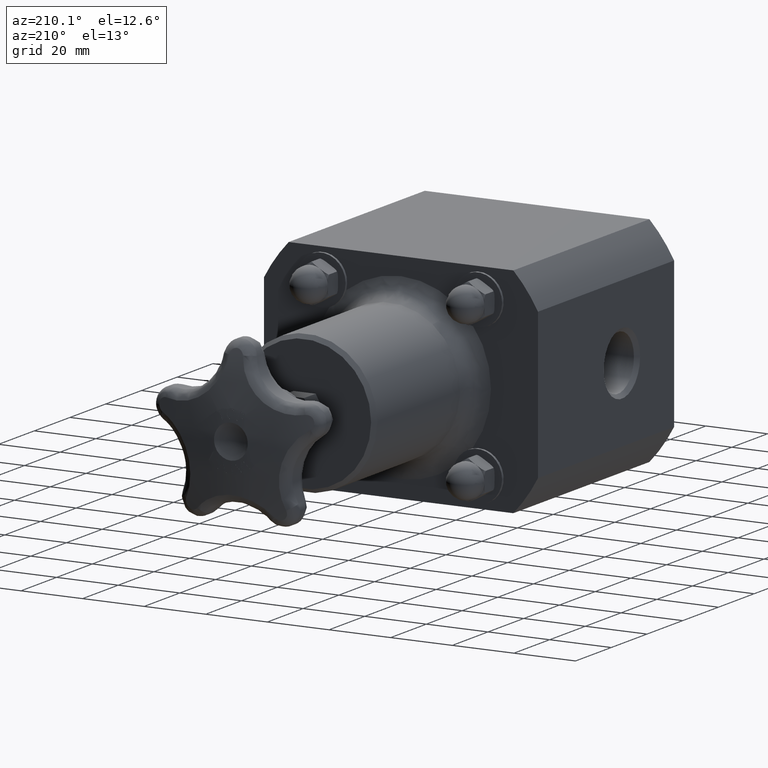
[diagram: clean part render]
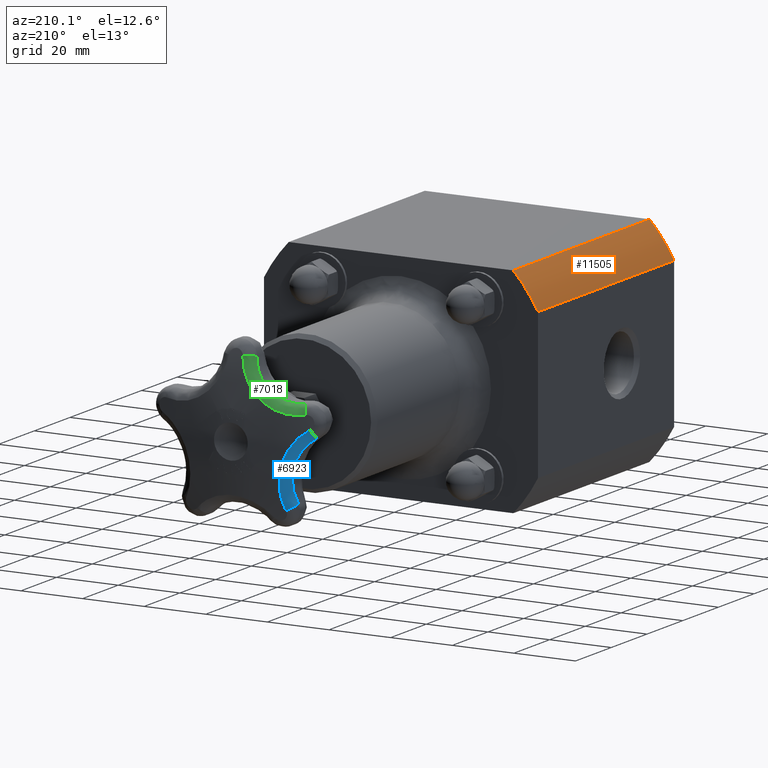
[diagram: same view with three faces highlighted in distinct colors, each labeled with its STEP entity id]
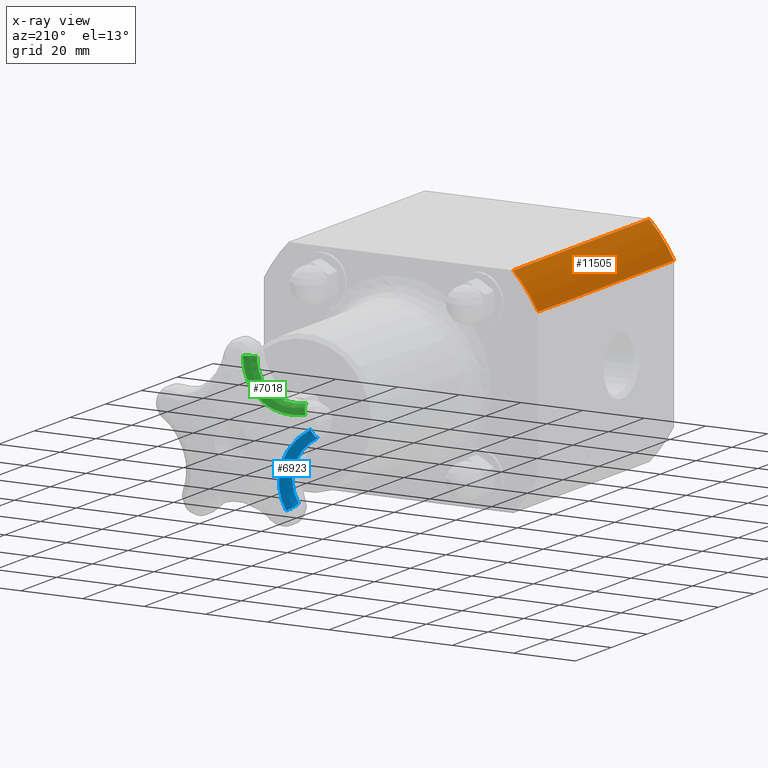
[diagram: x-ray of the same camera — body ghosted, the three highlighted faces saturated]
A machine part, auxiliary view with three faces highlighted in distinct colors.
The next image is the same camera in x-ray (body ghosted, the three faces saturated) — at least one of them is partly hidden behind the body in this view.
Their STEP definitions:

[orange] entity #11505 — the highlighted cylindrical surface (partial cylindrical patch) has radius 50.4825 mm, axis along (-0, 1, 0).
#10836=CARTESIAN_POINT('',(-1.750000000000001,2.999999999999999,0.942155109310565));
#10837=VERTEX_POINT('',#10836);
#10846=CARTESIAN_POINT('',(-1.435106703349965,3.000000000000000,1.375000000000000));
#10847=VERTEX_POINT('',#10846);
#10848=CARTESIAN_POINT('',(-1.102337E-015,3.000000000000000,-5.510831E-017));
#10849=DIRECTION('',(0.0,-1.0,0.0));
#10850=DIRECTION('',(1.0,0.0,0.0));
#10851=AXIS2_PLACEMENT_3D('',#10848,#10849,#10850);
#10852=CIRCLE('',#10851,1.987500000000001);
#10853=EDGE_CURVE('',#10847,#10837,#10852,.T.);
#11250=CARTESIAN_POINT('',(-1.435106703349964,-1.111253E-015,1.375000000000000));
#11251=VERTEX_POINT('',#11250);
#11258=CARTESIAN_POINT('',(-1.750000000000000,-1.144458E-015,0.942155109310564));
#11259=VERTEX_POINT('',#11258);
#11260=CARTESIAN_POINT('',(0.0,0.0,0.0));
#11261=DIRECTION('',(0.0,1.0,0.0));
#11262=DIRECTION('',(1.0,0.0,0.0));
#11263=AXIS2_PLACEMENT_3D('',#11260,#11261,#11262);
#11264=CIRCLE('',#11263,1.987500000000000);
#11265=EDGE_CURVE('',#11259,#11251,#11264,.T.);
#11377=CARTESIAN_POINT('',(-1.750000000000000,-1.144458E-015,0.942155109310564));
#11378=DIRECTION('',(0.0,1.0,0.0));
#11379=VECTOR('',#11378,3.000000000000000);
#11380=LINE('',#11377,#11379);
#11381=EDGE_CURVE('',#11259,#10837,#11380,.T.);
#11477=CARTESIAN_POINT('',(-1.435106703349964,-1.111253E-015,1.375000000000000));
#11478=DIRECTION('',(0.0,1.0,0.0));
#11479=VECTOR('',#11478,3.000000000000001);
#11480=LINE('',#11477,#11479);
#11481=EDGE_CURVE('',#11251,#10847,#11480,.T.);
#11494=CARTESIAN_POINT('',(0.0,0.0,0.0));
#11495=DIRECTION('',(-4.996004E-016,1.0,2.867440E-016));
#11496=DIRECTION('',(1.0,0.0,0.0));
#11497=AXIS2_PLACEMENT_3D('',#11494,#11495,#11496);
#11498=CYLINDRICAL_SURFACE('',#11497,1.987500000000000);
#11499=ORIENTED_EDGE('',*,*,#11381,.F.);
#11500=ORIENTED_EDGE('',*,*,#11265,.T.);
#11501=ORIENTED_EDGE('',*,*,#11481,.T.);
#11502=ORIENTED_EDGE('',*,*,#10853,.T.);
#11503=EDGE_LOOP('',(#11499,#11500,#11501,#11502));
#11504=FACE_OUTER_BOUND('',#11503,.T.);
#11505=ADVANCED_FACE('',(#11504),#11498,.T.);

[blue] entity #6923 — the highlighted face is a freeform B-spline surface patch.
#5211=CARTESIAN_POINT('',(-0.638344111801267,6.635505170405435,-0.733537096918585));
#5212=VERTEX_POINT('',#5211);
#5228=CARTESIAN_POINT('',(-0.947593522284918,6.635505170405343,0.218234722607282));
#5229=VERTEX_POINT('',#5228);
#5230=CARTESIAN_POINT('',(-0.947593522284918,6.635505170405342,0.218234722607282));
#5231=CARTESIAN_POINT('',(-0.904284021874671,6.647565117402349,0.191873864021962));
#5232=CARTESIAN_POINT('',(-0.842166029418054,6.663771254047489,0.145142638624979));
#5233=CARTESIAN_POINT('',(-0.760492505310597,6.682474449204505,0.061305759208963));
#5234=CARTESIAN_POINT('',(-0.697946940799928,6.694670548502885,-0.021538114669076));
#5235=CARTESIAN_POINT('',(-0.635525661419038,6.703108979244669,-0.137570090010120));
#5236=CARTESIAN_POINT('',(-0.591002258240292,6.703086725010987,-0.274801489546302));
#5237=CARTESIAN_POINT('',(-0.573668723663337,6.691576948346771,-0.431922080664895));
#5238=CARTESIAN_POINT('',(-0.588447853348153,6.669202511150400,-0.587303893608781));
#5239=CARTESIAN_POINT('',(-0.618800513865730,6.647565117402435,-0.686754028711438));
#5240=CARTESIAN_POINT('',(-0.638344111801267,6.635505170405434,-0.733537096918587));
#5241=B_SPLINE_CURVE_WITH_KNOTS('',3,(#5230,#5231,#5232,#5233,#5234,#5235,#5236,#5237,#5238,#5239,#5240),.UNSPECIFIED.,.F.,.U.,(4,1,1,1,1,1,1,1,4),(0.0,0.385208256310145,0.577812384465218,0.866718576697827,1.155624768930436,1.540833025240581,1.926041281550726,2.311249537860871,2.696457794171016),.UNSPECIFIED.);
#5242=EDGE_CURVE('',#5229,#5212,#5241,.T.);
#5706=CARTESIAN_POINT('',(-0.729920409159905,6.519105015293271,-0.665275006391362));
#5707=VERTEX_POINT('',#5706);
#5746=CARTESIAN_POINT('',(-0.981556853027233,6.519105015293182,0.109182334252116));
#5747=VERTEX_POINT('',#5746);
#5754=CARTESIAN_POINT('',(-0.729920409159905,6.519105015293270,-0.665275006391360));
#5755=CARTESIAN_POINT('',(-0.714017770971580,6.530803163880361,-0.627207593753631));
#5756=CARTESIAN_POINT('',(-0.689319791620175,6.551791435815887,-0.546284954967566));
#5757=CARTESIAN_POINT('',(-0.677294004306541,6.573494639896366,-0.419850674010557));
#5758=CARTESIAN_POINT('',(-0.691398312520991,6.584659123260657,-0.292001548136389));
#5759=CARTESIAN_POINT('',(-0.727627034274269,6.584680709867329,-0.180336270222897));
#5760=CARTESIAN_POINT('',(-0.778419269384754,6.576495432047799,-0.085920977388309));
#5761=CARTESIAN_POINT('',(-0.829312635385140,6.564665215728371,-0.018510864022946));
#5762=CARTESIAN_POINT('',(-0.895770434390745,6.546523116426062,0.049707258586239));
#5763=CARTESIAN_POINT('',(-0.946315884736221,6.530803163880279,0.087732486696052));
#5764=CARTESIAN_POINT('',(-0.981556853027371,6.519105015293182,0.109182334252200));
#5765=B_SPLINE_CURVE_WITH_KNOTS('',3,(#5754,#5755,#5756,#5757,#5758,#5759,#5760,#5761,#5762,#5763,#5764),.UNSPECIFIED.,.F.,.U.,(4,1,1,1,1,1,1,1,4),(-2.696457794171016,-2.311249537860871,-1.926041281550726,-1.540833025240581,-1.155624768930436,-0.866718576697827,-0.577812384465218,-0.385208256310145,0.0),.UNSPECIFIED.);
#5766=EDGE_CURVE('',#5707,#5747,#5765,.T.);
#6811=CARTESIAN_POINT('',(-0.619193788447229,6.519105015293271,-0.711530984011028));
#6812=DIRECTION('',(-0.375003773710442,-0.231407013669666,-0.897676424847737));
#6813=DIRECTION('',(-0.922721839272306,-7.597023E-016,0.385466480163882));
#6814=AXIS2_PLACEMENT_3D('',#6811,#6812,#6813);
#6815=CIRCLE('',#6814,0.120000000000000);
#6816=EDGE_CURVE('',#5707,#5212,#6815,.T.);
#6822=CARTESIAN_POINT('',(-0.947593522284918,6.635505170405342,0.218234722607282));
#6823=CARTESIAN_POINT('',(-0.904284021874671,6.647565117402349,0.191873864021962));
#6824=CARTESIAN_POINT('',(-0.842166029418054,6.663771254047489,0.145142638624979));
#6825=CARTESIAN_POINT('',(-0.760492505310597,6.682474449204505,0.061305759208963));
#6826=CARTESIAN_POINT('',(-0.697946940799928,6.694670548502885,-0.021538114669076));
#6827=CARTESIAN_POINT('',(-0.635525661419038,6.703108979244669,-0.137570090010120));
#6828=CARTESIAN_POINT('',(-0.591002258240292,6.703086725010987,-0.274801489546302));
#6829=CARTESIAN_POINT('',(-0.573668723663337,6.691576948346771,-0.431922080664895));
#6830=CARTESIAN_POINT('',(-0.588447853348153,6.669202511150400,-0.587303893608781));
#6831=CARTESIAN_POINT('',(-0.618800513865730,6.647565117402435,-0.686754028711438));
#6832=CARTESIAN_POINT('',(-0.638344111801267,6.635505170405434,-0.733537096918587));
#6833=CARTESIAN_POINT('',(-0.956187316724692,6.634233228101718,0.203533665002288));
#6834=CARTESIAN_POINT('',(-0.913717982538440,6.646047087731472,0.177887737119514));
#6835=CARTESIAN_POINT('',(-0.852796973917784,6.661928371257329,0.132352491171611));
#6836=CARTESIAN_POINT('',(-0.772699609242216,6.680260139164416,0.050524518847370));
#6837=CARTESIAN_POINT('',(-0.711373138220239,6.692216774904187,-0.030408123499209));
#6838=CARTESIAN_POINT('',(-0.650205909205072,6.700490168538976,-0.143846934051806));
#6839=CARTESIAN_POINT('',(-0.606656243954736,6.700468755400433,-0.278078770113950));
#6840=CARTESIAN_POINT('',(-0.589868992991323,6.689183014186083,-0.431789247601336));
#6841=CARTESIAN_POINT('',(-0.604653684507222,6.667250447293609,-0.583769269445925));
#6842=CARTESIAN_POINT('',(-0.634653587496935,6.646047087731556,-0.680984157310752));
#6843=CARTESIAN_POINT('',(-0.653937702402529,6.634233228101809,-0.726694997113801));
#6844=CARTESIAN_POINT('',(-0.971619554843550,6.624508197685351,0.173730164028957));
#6845=CARTESIAN_POINT('',(-0.930948625851645,6.635958350949776,0.149572958620677));
#6846=CARTESIAN_POINT('',(-0.872575595276061,6.651358993235534,0.106519016155813));
#6847=CARTESIAN_POINT('',(-0.795819246988725,6.669146308096625,0.028860971565212));
#6848=CARTESIAN_POINT('',(-0.737063254375389,6.680751955315008,-0.048109304315494));
#6849=CARTESIAN_POINT('',(-0.678524752838893,6.688785148691379,-0.156172219682951));
#6850=CARTESIAN_POINT('',(-0.636993828425158,6.688763988348486,-0.284183478373329));
#6851=CARTESIAN_POINT('',(-0.621307100936306,6.677806788233245,-0.430805887629537));
#6852=CARTESIAN_POINT('',(-0.636037907078372,6.656520402225508,-0.575680578299910));
#6853=CARTESIAN_POINT('',(-0.665236479984880,6.635958350949858,-0.668204938340263));
#6854=CARTESIAN_POINT('',(-0.683940703640739,6.624508197685439,-0.711654300310654));
#6855=CARTESIAN_POINT('',(-0.983057475883533,6.596588875401551,0.142165327465863));
#6856=CARTESIAN_POINT('',(-0.944590943039508,6.607938085246204,0.119541418687552));
#6857=CARTESIAN_POINT('',(-0.889350428909709,6.623205957159888,0.079116240707429));
#6858=CARTESIAN_POINT('',(-0.816686361492362,6.640841718154200,0.006007459470542));
#6859=CARTESIAN_POINT('',(-0.761058467100853,6.652349897884140,-0.066559720401943));
#6860=CARTESIAN_POINT('',(-0.705661748961900,6.660315963104670,-0.168556151344441));
#6861=CARTESIAN_POINT('',(-0.666435132085040,6.660295188757975,-0.289466361363595));
#6862=CARTESIAN_POINT('',(-0.651792590489295,6.649428998169799,-0.427960123942091));
#6863=CARTESIAN_POINT('',(-0.666043527973955,6.628322707782913,-0.564712452855365));
#6864=CARTESIAN_POINT('',(-0.693925442708843,6.607938085246286,-0.651927665017256));
#6865=CARTESIAN_POINT('',(-0.711747521565220,6.596588875401640,-0.692840852410650));
#6866=CARTESIAN_POINT('',(-0.986284887407959,6.567807277631218,0.123695438757014));
#6867=CARTESIAN_POINT('',(-0.949344867395282,6.579239204673015,0.101870842376554));
#6868=CARTESIAN_POINT('',(-0.896297017780259,6.594612943893410,0.062909420338544));
#6869=CARTESIAN_POINT('',(-0.826510177599002,6.612367733777969,-0.007492955556942));
#6870=CARTESIAN_POINT('',(-0.773076283630425,6.623951042093887,-0.077340454566615));
#6871=CARTESIAN_POINT('',(-0.719844192128731,6.631968498190688,-0.175477758222526));
#6872=CARTESIAN_POINT('',(-0.682111553142738,6.631947221899472,-0.291781993077312));
#6873=CARTESIAN_POINT('',(-0.667946242098623,6.621011904763394,-0.424985083514721));
#6874=CARTESIAN_POINT('',(-0.681493620296089,6.599765457601722,-0.556520146800104));
#6875=CARTESIAN_POINT('',(-0.708157952457756,6.579239204673097,-0.640426155108109));
#6876=CARTESIAN_POINT('',(-0.725214880530872,6.567807277631307,-0.679795423458125));
#6877=CARTESIAN_POINT('',(-0.985670605286237,6.544024924944326,0.113824377075803));
#6878=CARTESIAN_POINT('',(-0.949707545115651,6.555574690436052,0.092349555362798));
#6879=CARTESIAN_POINT('',(-0.898081142969203,6.571102154531058,0.054105338112258));
#6880=CARTESIAN_POINT('',(-0.830171933105990,6.589028349226894,-0.014828797462553));
#6881=CARTESIAN_POINT('',(-0.778169453505037,6.600721116738098,-0.083126187170511));
#6882=CARTESIAN_POINT('',(-0.726327724926878,6.608812748136156,-0.178982187082710));
#6883=CARTESIAN_POINT('',(-0.689497806285612,6.608791518669297,-0.292502979524558));
#6884=CARTESIAN_POINT('',(-0.675488599160306,6.597754440158965,-0.422499808729626));
#6885=CARTESIAN_POINT('',(-0.688354610104227,6.576305926606150,-0.550925694650722));
#6886=CARTESIAN_POINT('',(-0.714047836986549,6.555574690436134,-0.632936448721034));
#6887=CARTESIAN_POINT('',(-0.730519980335748,6.544024924944415,-0.671448500833614));
#6888=CARTESIAN_POINT('',(-0.983244570598843,6.527411303606259,0.110209584250748));
#6889=CARTESIAN_POINT('',(-0.947790801483783,6.539060192429695,0.088782843608600));
#6890=CARTESIAN_POINT('',(-0.896922452480651,6.554715842434780,0.050734023439180));
#6891=CARTESIAN_POINT('',(-0.830027711584679,6.572786201530670,-0.017647549342470));
#6892=CARTESIAN_POINT('',(-0.778799832038329,6.584570583336439,-0.085286220316110));
#6893=CARTESIAN_POINT('',(-0.727694401189980,6.592724790420967,-0.180095744920975));
#6894=CARTESIAN_POINT('',(-0.691296369667215,6.592703184392589,-0.292283598687993));
#6895=CARTESIAN_POINT('',(-0.677247735747367,6.581581326920157,-0.420738856849588));
#6896=CARTESIAN_POINT('',(-0.689565548316267,6.559962720243070,-0.547721727767523));
#6897=CARTESIAN_POINT('',(-0.714593619382807,6.539060192429777,-0.628924284658617));
#6898=CARTESIAN_POINT('',(-0.730681998957366,6.527411303606348,-0.667098084596203));
#6899=CARTESIAN_POINT('',(-0.981556853027371,6.519105015293182,0.109182334252200));
#6900=CARTESIAN_POINT('',(-0.946315884736221,6.530803163880279,0.087732486696052));
#6901=CARTESIAN_POINT('',(-0.895770434390745,6.546523116426062,0.049707258586239));
#6902=CARTESIAN_POINT('',(-0.829312635385140,6.564665215728371,-0.018510864022946));
#6903=CARTESIAN_POINT('',(-0.778419269384754,6.576495432047799,-0.085920977388309));
#6904=CARTESIAN_POINT('',(-0.727627034274269,6.584680709867329,-0.180336270222897));
#6905=CARTESIAN_POINT('',(-0.691398312520991,6.584659123260657,-0.292001548136389));
#6906=CARTESIAN_POINT('',(-0.677294004306541,6.573494639896366,-0.419850674010557));
#6907=CARTESIAN_POINT('',(-0.689319791620175,6.551791435815887,-0.546284954967566));
#6908=CARTESIAN_POINT('',(-0.714017770971580,6.530803163880361,-0.627207593753631));
#6909=CARTESIAN_POINT('',(-0.729920409159905,6.519105015293270,-0.665275006391360));
#6910=B_SPLINE_SURFACE_WITH_KNOTS('',3,3,((#6822,#6833,#6844,#6855,#6866,#6877,#6888,#6899),(#6823,#6834,#6845,#6856,#6867,#6878,#6889,#6900),(#6824,#6835,#6846,#6857,#6868,#6879,#6890,#6901),(#6825,#6836,#6847,#6858,#6869,#6880,#6891,#6902),(#6826,#6837,#6848,#6859,#6870,#6881,#6892,#6903),(#6827,#6838,#6849,#6860,#6871,#6882,#6893,#6904),(#6828,#6839,#6850,#6861,#6872,#6883,#6894,#6905),(#6829,#6840,#6851,#6862,#6873,#6884,#6895,#6906),(#6830,#6841,#6852,#6863,#6874,#6885,#6896,#6907),(#6831,#6842,#6853,#6864,#6875,#6886,#6897,#6908),(#6832,#6843,#6854,#6865,#6876,#6887,#6898,#6909)),.UNSPECIFIED.,.F.,.F.,.U.,(4,1,1,1,1,1,1,1,4),(4,1,1,1,1,4),(0.0,0.385208256310145,0.577812384465218,0.866718576697827,1.155624768930436,1.540833025240581,1.926041281550726,2.311249537860871,2.696457794171016),(0.0,0.285714285714286,0.571428571428571,0.714285714285714,0.857142857142857,1.0),.UNSPECIFIED.);
#6911=ORIENTED_EDGE('',*,*,#6816,.F.);
#6912=ORIENTED_EDGE('',*,*,#5766,.T.);
#6913=CARTESIAN_POINT('',(-0.919165716616371,6.519105015293182,0.211687680929064));
#6914=DIRECTION('',(0.831025389743519,0.231407013669898,-0.505813795408955));
#6915=DIRECTION('',(-0.519926136757183,-4.280695E-016,-0.854211222307897));
#6916=AXIS2_PLACEMENT_3D('',#6913,#6914,#6915);
#6917=CIRCLE('',#6916,0.120000000000000);
#6918=EDGE_CURVE('',#5747,#5229,#6917,.T.);
#6919=ORIENTED_EDGE('',*,*,#6918,.T.);
#6920=ORIENTED_EDGE('',*,*,#5242,.T.);
#6921=EDGE_LOOP('',(#6911,#6912,#6919,#6920));
#6922=FACE_OUTER_BOUND('',#6921,.T.);
#6923=ADVANCED_FACE('',(#6922),#6910,.T.);

[green] entity #7018 — the highlighted face is a freeform B-spline surface patch.
#5244=CARTESIAN_POINT('',(-0.885536082012024,6.637776509861735,0.379150297943406));
#5245=VERTEX_POINT('',#5244);
#5265=CARTESIAN_POINT('',(-0.086947663040456,6.637776509861831,0.959358746698467));
#5266=VERTEX_POINT('',#5265);
#5267=CARTESIAN_POINT('',(-0.086947663040456,6.637776509861829,0.959358746698470));
#5268=CARTESIAN_POINT('',(-0.093352425211148,6.650252050247303,0.908292994019373));
#5269=CARTESIAN_POINT('',(-0.118427345408804,6.672851063495754,0.805543291395521));
#5270=CARTESIAN_POINT('',(-0.190540386722649,6.696443995900790,0.664230827120378));
#5271=CARTESIAN_POINT('',(-0.295106369051179,6.708740981652950,0.541709446220765));
#5272=CARTESIAN_POINT('',(-0.447124789207163,6.708648646924091,0.431594577430660));
#5273=CARTESIAN_POINT('',(-0.651113974695524,6.688073557226791,0.361324977985522));
#5274=CARTESIAN_POINT('',(-0.809717686211067,6.656489820439957,0.364616956027417));
#5275=CARTESIAN_POINT('',(-0.885536082012024,6.637776509861736,0.379150297943406));
#5276=B_SPLINE_CURVE_WITH_KNOTS('',3,(#5267,#5268,#5269,#5270,#5271,#5272,#5273,#5274,#5275),.UNSPECIFIED.,.F.,.U.,(4,1,1,1,1,1,4),(6.980493E-016,0.391421298642813,0.782842597285625,1.174263895928437,1.565685194571249,2.152817142535468,2.739949090499686),.UNSPECIFIED.);
#5277=EDGE_CURVE('',#5266,#5245,#5276,.T.);
#5778=CARTESIAN_POINT('',(-0.836378947165189,6.521308214565884,0.485630124318115));
#5779=VERTEX_POINT('',#5778);
#5815=CARTESIAN_POINT('',(-0.203406385830522,6.521308214565975,0.945511609188104));
#5816=VERTEX_POINT('',#5815);
#5823=CARTESIAN_POINT('',(-0.836378947165344,6.521308214565884,0.485630124318145));
#5824=CARTESIAN_POINT('',(-0.776284206186962,6.539460125826760,0.474110790404981));
#5825=CARTESIAN_POINT('',(-0.650572644223061,6.570096350509985,0.471501521695926));
#5826=CARTESIAN_POINT('',(-0.488887908812726,6.590054187516370,0.527198207608355));
#5827=CARTESIAN_POINT('',(-0.368395942625538,6.590143752203359,0.614476821827276));
#5828=CARTESIAN_POINT('',(-0.285515454891669,6.578215676023767,0.711589014345898));
#5829=CARTESIAN_POINT('',(-0.228357630683736,6.555330531590880,0.823595287334383));
#5830=CARTESIAN_POINT('',(-0.208482891599470,6.533409488739883,0.905036165891032));
#5831=CARTESIAN_POINT('',(-0.203406385830523,6.521308214565972,0.945511609188102));
#5832=B_SPLINE_CURVE_WITH_KNOTS('',3,(#5823,#5824,#5825,#5826,#5827,#5828,#5829,#5830,#5831),.UNSPECIFIED.,.F.,.U.,(4,1,1,1,1,1,4),(-2.739949090499686,-2.152817142535468,-1.565685194571249,-1.174263895928437,-0.782842597285625,-0.391421298642813,-6.980493E-016),.UNSPECIFIED.);
#5833=EDGE_CURVE('',#5779,#5816,#5832,.T.);
#6687=CARTESIAN_POINT('',(-0.084339233149243,6.521308214565975,0.930577984297513));
#6688=DIRECTION('',(0.120944259478503,-0.235581736417829,0.964299606743442));
#6689=DIRECTION('',(-0.021736915760110,0.970569127465458,0.239839686674616));
#6690=AXIS2_PLACEMENT_3D('',#6687,#6688,#6689);
#6691=CIRCLE('',#6690,0.120000000000001);
#6692=EDGE_CURVE('',#5266,#5816,#6691,.T.);
#6924=CARTESIAN_POINT('',(-0.086947663040456,6.637776509861829,0.959358746698470));
#6925=CARTESIAN_POINT('',(-0.093352425211148,6.650252050247303,0.908292994019373));
#6926=CARTESIAN_POINT('',(-0.118427345408804,6.672851063495754,0.805543291395521));
#6927=CARTESIAN_POINT('',(-0.190540386722649,6.696443995900790,0.664230827120378));
#6928=CARTESIAN_POINT('',(-0.295106369051179,6.708740981652950,0.541709446220765));
#6929=CARTESIAN_POINT('',(-0.447124789207163,6.708648646924091,0.431594577430660));
#6930=CARTESIAN_POINT('',(-0.651113974695524,6.688073557226791,0.361324977985522));
#6931=CARTESIAN_POINT('',(-0.809717686211067,6.656489820439957,0.364616956027417));
#6932=CARTESIAN_POINT('',(-0.885536082012024,6.637776509861736,0.379150297943406));
#6933=CARTESIAN_POINT('',(-0.104180161478883,6.636908858405151,0.961308108611182));
#6934=CARTESIAN_POINT('',(-0.110224296323031,6.649087556793072,0.911470103079139));
#6935=CARTESIAN_POINT('',(-0.134320695188167,6.671162688165934,0.811152309180666));
#6936=CARTESIAN_POINT('',(-0.204305357291316,6.694219755290722,0.673142727953548));
#6937=CARTESIAN_POINT('',(-0.306127718007005,6.706243780194952,0.553520505105598));
#6938=CARTESIAN_POINT('',(-0.454378977114615,6.706152554661421,0.446134401417576));
#6939=CARTESIAN_POINT('',(-0.653453846604162,6.686037694680870,0.377924605038889));
#6940=CARTESIAN_POINT('',(-0.808165150033405,6.655176905986951,0.381663048565100));
#6941=CARTESIAN_POINT('',(-0.882064900488704,6.636908858405059,0.396141763834533));
#6942=CARTESIAN_POINT('',(-0.129885581999241,6.630018349255376,0.962848755240840));
#6943=CARTESIAN_POINT('',(-0.135384925842319,6.641871890296236,0.914958598487652));
#6944=CARTESIAN_POINT('',(-0.157986077240760,6.663369814321002,0.818482653247155));
#6945=CARTESIAN_POINT('',(-0.224697905158575,6.685846710921155,0.685656479446968));
#6946=CARTESIAN_POINT('',(-0.322283089050407,6.697571593733512,0.570553578565760));
#6947=CARTESIAN_POINT('',(-0.464698688631698,6.697484257064077,0.467395393579903));
#6948=CARTESIAN_POINT('',(-0.656121377922410,6.677864130512638,0.402337898570720));
#6949=CARTESIAN_POINT('',(-0.804718276188891,6.647798660816586,0.406712129261315));
#6950=CARTESIAN_POINT('',(-0.875586730716788,6.630018349255287,0.421065157515417));
#6951=CARTESIAN_POINT('',(-0.159178525720001,6.611003643008802,0.961877372361245));
#6952=CARTESIAN_POINT('',(-0.164147821498937,6.622681486664462,0.916443369369621));
#6953=CARTESIAN_POINT('',(-0.185153372479506,6.643869767985853,0.824834303427671));
#6954=CARTESIAN_POINT('',(-0.248053809880645,6.666033236178132,0.698588422846565));
#6955=CARTESIAN_POINT('',(-0.340502279057339,6.677598228862745,0.589187344687826));
#6956=CARTESIAN_POINT('',(-0.475690989249603,6.677512057981670,0.491263535414578));
#6957=CARTESIAN_POINT('',(-0.657527076459769,6.658159668096200,0.429880132521068));
#6958=CARTESIAN_POINT('',(-0.798492021095853,6.628520408492213,0.434653531832224));
#6959=CARTESIAN_POINT('',(-0.865610873274330,6.611003643008714,0.448624228704671));
#6960=CARTESIAN_POINT('',(-0.177641401186242,6.592548919270539,0.959684467741688));
#6961=CARTESIAN_POINT('',(-0.182353964618404,6.604213509922350,0.915934637539372));
#6962=CARTESIAN_POINT('',(-0.202456456728739,6.625376603426857,0.827687086906445));
#6963=CARTESIAN_POINT('',(-0.262934403165562,6.647513449903991,0.706016063440408));
#6964=CARTESIAN_POINT('',(-0.351959472962086,6.659063919530742,0.600566413626200));
#6965=CARTESIAN_POINT('',(-0.482223444367282,6.658978054849633,0.506209503892967));
#6966=CARTESIAN_POINT('',(-0.657461304350763,6.639649244008060,0.447170565478059));
#6967=CARTESIAN_POINT('',(-0.793222719829696,6.610045805248179,0.451949531622476));
#6968=CARTESIAN_POINT('',(-0.857819954762177,6.592548919270452,0.465505821931897));
#6969=CARTESIAN_POINT('',(-0.191722831635718,6.570743522767244,0.956123453126104));
#6970=CARTESIAN_POINT('',(-0.196351972277720,6.582494062912272,0.913818525038692));
#6971=CARTESIAN_POINT('',(-0.215923126844701,6.603805891010388,0.828493268417833));
#6972=CARTESIAN_POINT('',(-0.274551449224982,6.626089005535145,0.710853111888778));
#6973=CARTESIAN_POINT('',(-0.360737628701476,6.637713091300023,0.608877850976839));
#6974=CARTESIAN_POINT('',(-0.486772103772685,6.637626499196673,0.517584186611886));
#6975=CARTESIAN_POINT('',(-0.656266045723252,6.618175073352040,0.460353218940598));
#6976=CARTESIAN_POINT('',(-0.787584536308413,6.588369332984708,0.464792093057560));
#6977=CARTESIAN_POINT('',(-0.850081827293397,6.570743522767158,0.477797644086192));
#6978=CARTESIAN_POINT('',(-0.200765177341829,6.546619603441009,0.951364003919022));
#6979=CARTESIAN_POINT('',(-0.205503625321456,6.558526979654115,0.910192864151760));
#6980=CARTESIAN_POINT('',(-0.224966630042632,6.580111220907514,0.827216449846172));
#6981=CARTESIAN_POINT('',(-0.282422820228032,6.602663377696567,0.712897787598310));
#6982=CARTESIAN_POINT('',(-0.366481388975032,6.614423333033382,0.613784644586963));
#6983=CARTESIAN_POINT('',(-0.489152290071918,6.614335384140136,0.524927230088624));
#6984=CARTESIAN_POINT('',(-0.653986981660645,6.594657717148500,0.468871459882917));
#6985=CARTESIAN_POINT('',(-0.781830571051395,6.564480667760591,0.472602600147111));
#6986=CARTESIAN_POINT('',(-0.842761083618816,6.546619603440922,0.484926675203727));
#6987=CARTESIAN_POINT('',(-0.203151850662225,6.529745902373059,0.947541041289721));
#6988=CARTESIAN_POINT('',(-0.208094831892269,6.541782556103569,0.906879509598023));
#6989=CARTESIAN_POINT('',(-0.227783484645376,6.563591267470718,0.825012193750901));
#6990=CARTESIAN_POINT('',(-0.284954905957975,6.586365430062979,0.712341704052910));
#6991=CARTESIAN_POINT('',(-0.368132175000373,6.598237408310704,0.614652787805997));
#6992=CARTESIAN_POINT('',(-0.489228580858644,6.598148416873741,0.526936133259231));
#6993=CARTESIAN_POINT('',(-0.651806077791794,6.578283942462699,0.471200050375587));
#6994=CARTESIAN_POINT('',(-0.778089387661310,6.547800882968745,0.474219101294068));
#6995=CARTESIAN_POINT('',(-0.838387707482639,6.529745902372971,0.486015175996040));
#6996=CARTESIAN_POINT('',(-0.203406385830523,6.521308214565972,0.945511609188102));
#6997=CARTESIAN_POINT('',(-0.208482891599470,6.533409488739883,0.905036165891032));
#6998=CARTESIAN_POINT('',(-0.228357630683736,6.555330531590880,0.823595287334383));
#6999=CARTESIAN_POINT('',(-0.285515454891669,6.578215676023767,0.711589014345898));
#7000=CARTESIAN_POINT('',(-0.368395942625538,6.590143752203359,0.614476821827276));
#7001=CARTESIAN_POINT('',(-0.488887908812726,6.590054187516370,0.527198207608355));
#7002=CARTESIAN_POINT('',(-0.650572644223061,6.570096350509985,0.471501521695926));
#7003=CARTESIAN_POINT('',(-0.776284206186962,6.539460125826760,0.474110790404981));
#7004=CARTESIAN_POINT('',(-0.836378947165344,6.521308214565884,0.485630124318145));
#7005=B_SPLINE_SURFACE_WITH_KNOTS('',3,3,((#6924,#6933,#6942,#6951,#6960,#6969,#6978,#6987,#6996),(#6925,#6934,#6943,#6952,#6961,#6970,#6979,#6988,#6997),(#6926,#6935,#6944,#6953,#6962,#6971,#6980,#6989,#6998),(#6927,#6936,#6945,#6954,#6963,#6972,#6981,#6990,#6999),(#6928,#6937,#6946,#6955,#6964,#6973,#6982,#6991,#7000),(#6929,#6938,#6947,#6956,#6965,#6974,#6983,#6992,#7001),(#6930,#6939,#6948,#6957,#6966,#6975,#6984,#6993,#7002),(#6931,#6940,#6949,#6958,#6967,#6976,#6985,#6994,#7003),(#6932,#6941,#6950,#6959,#6968,#6977,#6986,#6995,#7004)),.UNSPECIFIED.,.F.,.F.,.U.,(4,1,1,1,1,1,4),(4,1,1,1,1,1,4),(6.980493E-016,0.391421298642813,0.782842597285625,1.174263895928437,1.565685194571249,2.152817142535468,2.739949090499686),(0.0,0.285714285714286,0.428571428571429,0.571428571428571,0.714285714285714,0.857142857142857,1.0),.UNSPECIFIED.);
#7006=CARTESIAN_POINT('',(-0.858969999551664,6.521308214565885,0.367775789005104));
#7007=DIRECTION('',(0.954477256204757,0.235581736418023,-0.182960140069111));
#7008=DIRECTION('',(-0.221384020503009,0.970569127465433,0.094787574485852));
#7009=AXIS2_PLACEMENT_3D('',#7006,#7007,#7008);
#7010=CIRCLE('',#7009,0.119999999999999);
#7011=EDGE_CURVE('',#5245,#5779,#7010,.T.);
#7012=ORIENTED_EDGE('',*,*,#7011,.T.);
#7013=ORIENTED_EDGE('',*,*,#5833,.T.);
#7014=ORIENTED_EDGE('',*,*,#6692,.F.);
#7015=ORIENTED_EDGE('',*,*,#5277,.T.);
#7016=EDGE_LOOP('',(#7012,#7013,#7014,#7015));
#7017=FACE_OUTER_BOUND('',#7016,.T.);
#7018=ADVANCED_FACE('',(#7017),#7005,.T.);